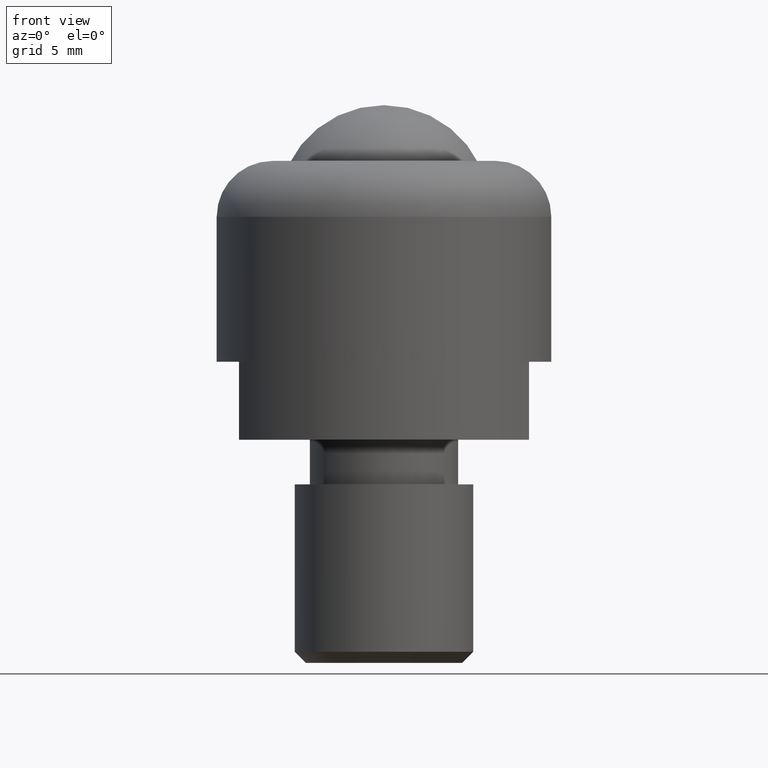
[diagram: clean part render]
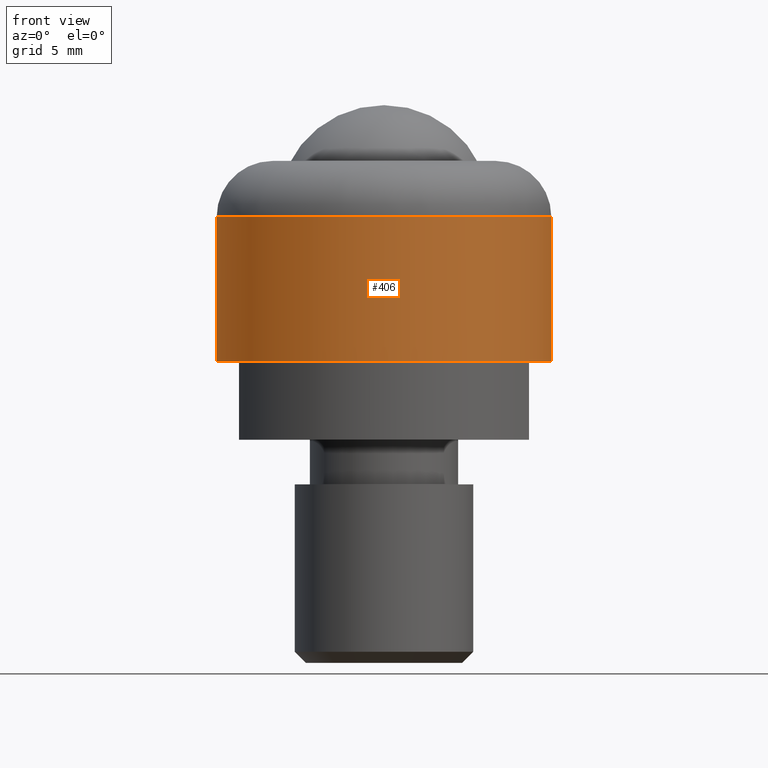
[diagram: same view with one face highlighted and labeled with its STEP entity id]
A machine part, front view. The second image highlights one B-rep face of the part: STEP entity #406.
In plain terms, the highlighted cylindrical surface (partial cylindrical patch) has radius 7.5 mm, axis along (0, 0, -1).
Its self-contained STEP definition (entity closure, byte-faithful):
#13 = CARTESIAN_POINT ( 'NONE',  ( -7.500000000000000000, 0.0000000000000000000, 0.0000000000000000000 ) ) ;
#67 = ORIENTED_EDGE ( 'NONE', *, *, #832, .T. ) ;
#86 = ORIENTED_EDGE ( 'NONE', *, *, #737, .T. ) ;
#104 = CYLINDRICAL_SURFACE ( 'NONE', #152, 7.500000000000000000 ) ;
#134 = FACE_OUTER_BOUND ( 'NONE', #586, .T. ) ;
#152 = AXIS2_PLACEMENT_3D ( 'NONE', #813, #314, #327 ) ;
#163 = VERTEX_POINT ( 'NONE', #475 ) ;
#202 = CIRCLE ( 'NONE', #505, 7.500000000000000000 ) ;
#233 = DIRECTION ( 'NONE',  ( 0.0000000000000000000, 0.0000000000000000000, -1.000000000000000000 ) ) ;
#243 = DIRECTION ( 'NONE',  ( 0.0000000000000000000, 0.0000000000000000000, -1.000000000000000000 ) ) ;
#245 = CARTESIAN_POINT ( 'NONE',  ( 7.500000000000000000, 9.184850993605147900E-016, 0.0000000000000000000 ) ) ;
#250 = LINE ( 'NONE', #13, #574 ) ;
#274 = ORIENTED_EDGE ( 'NONE', *, *, #828, .F. ) ;
#314 = DIRECTION ( 'NONE',  ( 0.0000000000000000000, 0.0000000000000000000, -1.000000000000000000 ) ) ;
#323 = CARTESIAN_POINT ( 'NONE',  ( -7.500000000000000000, 0.0000000000000000000, 6.500000000000000000 ) ) ;
#327 = DIRECTION ( 'NONE',  ( -1.000000000000000000, 0.0000000000000000000, 0.0000000000000000000 ) ) ;
#351 = VERTEX_POINT ( 'NONE', #462 ) ;
#405 = CARTESIAN_POINT ( 'NONE',  ( 7.500000000000000000, 9.184850993605147900E-016, 6.500000000000000000 ) ) ;
#406 = ADVANCED_FACE ( 'NONE', ( #134 ), #104, .T. ) ;
#462 = CARTESIAN_POINT ( 'NONE',  ( 7.500000000000000000, 9.184850993605147900E-016, 0.0000000000000000000 ) ) ;
#474 = DIRECTION ( 'NONE',  ( 0.0000000000000000000, 0.0000000000000000000, -1.000000000000000000 ) ) ;
#475 = CARTESIAN_POINT ( 'NONE',  ( -7.500000000000000000, 0.0000000000000000000, 0.0000000000000000000 ) ) ;
#505 = AXIS2_PLACEMENT_3D ( 'NONE', #765, #243, #693 ) ;
#574 = VECTOR ( 'NONE', #233, 1000.000000000000000 ) ;
#586 = EDGE_LOOP ( 'NONE', ( #848, #86, #67, #274 ) ) ;
#666 = VERTEX_POINT ( 'NONE', #323 ) ;
#682 = EDGE_CURVE ( 'NONE', #810, #351, #742, .T. ) ;
#693 = DIRECTION ( 'NONE',  ( -1.000000000000000000, 0.0000000000000000000, 0.0000000000000000000 ) ) ;
#702 = CARTESIAN_POINT ( 'NONE',  ( 0.0000000000000000000, 0.0000000000000000000, 6.500000000000000000 ) ) ;
#737 = EDGE_CURVE ( 'NONE', #810, #666, #933, .T. ) ;
#742 = LINE ( 'NONE', #245, #761 ) ;
#761 = VECTOR ( 'NONE', #931, 1000.000000000000000 ) ;
#765 = CARTESIAN_POINT ( 'NONE',  ( 0.0000000000000000000, 0.0000000000000000000, 0.0000000000000000000 ) ) ;
#810 = VERTEX_POINT ( 'NONE', #405 ) ;
#813 = CARTESIAN_POINT ( 'NONE',  ( 0.0000000000000000000, 0.0000000000000000000, 0.0000000000000000000 ) ) ;
#828 = EDGE_CURVE ( 'NONE', #351, #163, #202, .T. ) ;
#832 = EDGE_CURVE ( 'NONE', #666, #163, #250, .T. ) ;
#848 = ORIENTED_EDGE ( 'NONE', *, *, #682, .F. ) ;
#914 = DIRECTION ( 'NONE',  ( -1.000000000000000000, 0.0000000000000000000, 0.0000000000000000000 ) ) ;
#930 = AXIS2_PLACEMENT_3D ( 'NONE', #702, #474, #914 ) ;
#931 = DIRECTION ( 'NONE',  ( 0.0000000000000000000, 0.0000000000000000000, -1.000000000000000000 ) ) ;
#933 = CIRCLE ( 'NONE', #930, 7.500000000000000000 ) ;